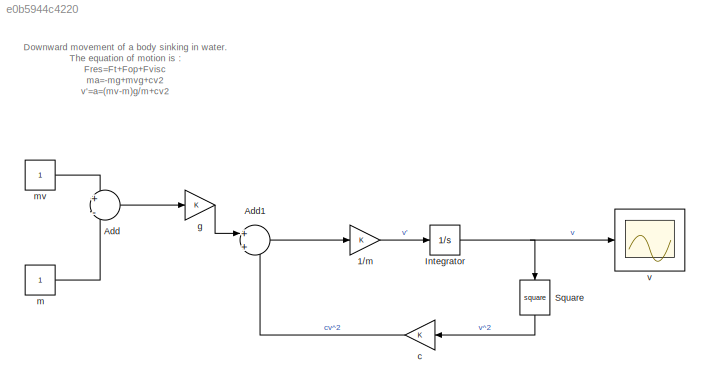
MODEL slx_e0b5944c4220
KIND model
CONFIG AbsTol = auto
CONFIG EnableMultiTasking = off
CONFIG FixedStep = auto
CONFIG MaxStep = auto
CONFIG MinStep = auto
CONFIG RelTol = 1e-3
CONFIG SampleTimeConstraint = Unconstrained
CONFIG SolverName = VariableStepAuto
CONFIG StartTime = 0.0
CONFIG StopTime = 10.0
BLOCK [Gain] 1//m
BLOCK [Sum] Add
  Inputs = +-
  Ports = [2, 1]
BLOCK [Sum] Add1
  Ports = [2, 1]
BLOCK [Integrator] Integrator
  Ports = [1, 1]
BLOCK [Math] Square
  NameLocation = left
  Operator = square
  Ports = [1, 1]
BLOCK [Gain] c
  NameLocation = top
BLOCK [Gain] g
BLOCK [Constant] m
BLOCK [Constant] mv
BLOCK [Scope] v
  Floating = off
  NumInputPorts = 1
  Ports = [1]
  ScopeSpecificationString = Simulink.scopes.TimeScopeBlockCfg('CurrentConfiguration', extmgr.ConfigurationSet(extmgr.Configuration('Core','General UI',true),extmgr.Configuration('Core','Source UI',true),extmgr.Configuration('Sources','WiredSimulink',true),extmgr.Configuration('Visuals','Time Domain',true),extmgr.Configuration('Tools','Plot Navigation',true),extmgr.Configuration('Tools','Measurements',true)),'Version','2020b'...<+1ch>
ANNOTATION (root): Downward movement of a body sinking in water. The equation of motion is : F res =F t +F op +F visc ma=-mg+m v g+cv 2 v'=a=(m v -m)g/m+cv 2
LINE 1//m:1 -> Integrator:1
LINE Add1:1 -> 1//m:1
LINE Add:1 -> g:1
NET Integrator:1 -> Square:1, v:1
LINE Square:1 -> c:1
LINE c:1 -> Add1:2
LINE g:1 -> Add1:1
LINE m:1 -> Add:2
LINE mv:1 -> Add:1
note: NET lines group one-source signal fan-out (src -> all destinations, sorted); 1:1 wires keep LINE
